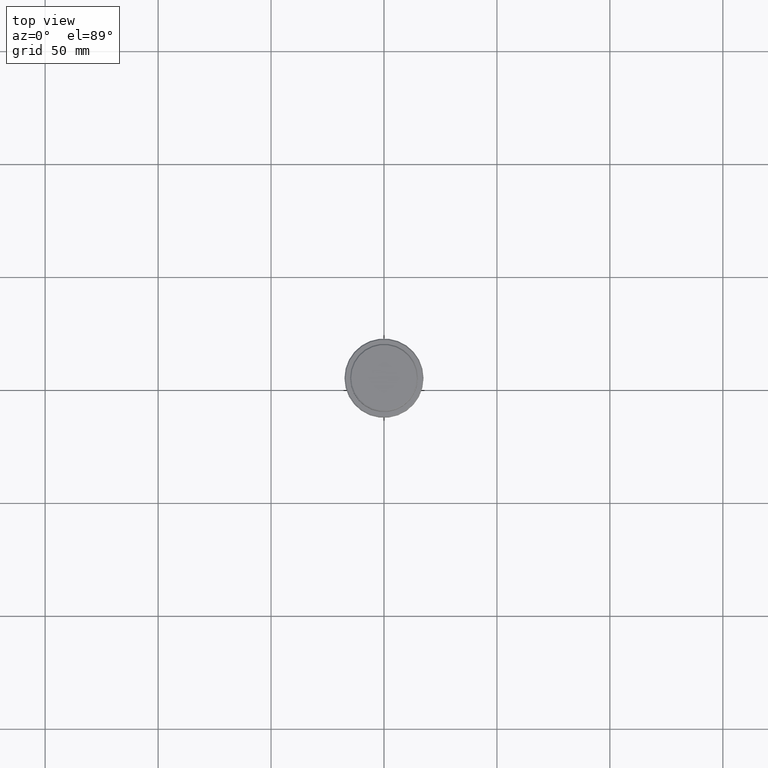
[diagram: clean part render]
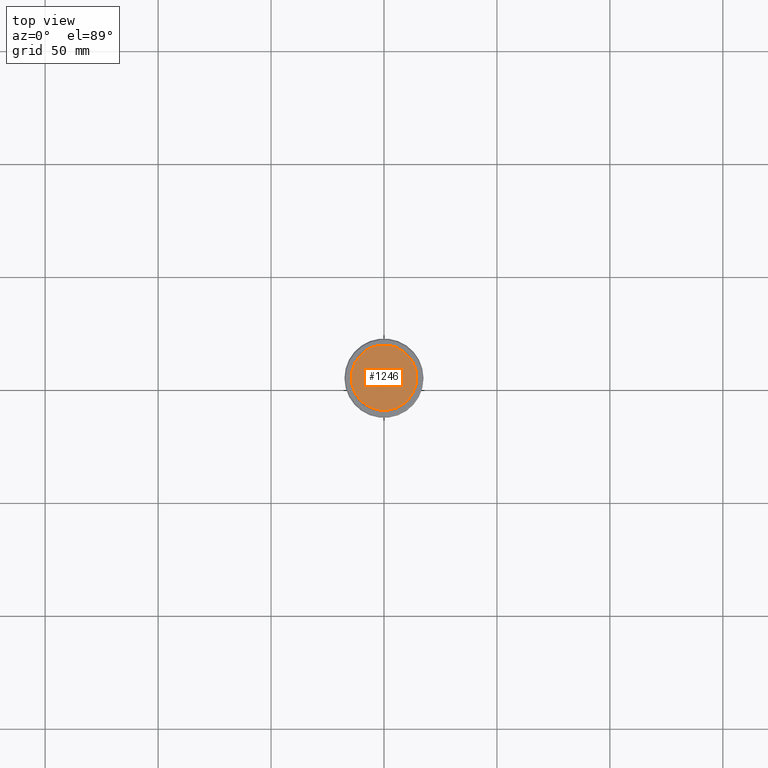
[diagram: same view with one face highlighted and labeled with its STEP entity id]
A machine part, top view. The second image highlights one B-rep face of the part: STEP entity #1246.
In plain terms, the highlighted planar face has unit normal (0, -0, 1).
Its self-contained STEP definition (entity closure, byte-faithful):
#149 = DIRECTION ( 'NONE',  ( -0.000000000000000000, -0.000000000000000000, 1.000000000000000000 ) ) ;
#195 = VERTEX_POINT ( 'NONE', #612 ) ;
#201 = AXIS2_PLACEMENT_3D ( 'NONE', #1286, #1373, #1401 ) ;
#267 = AXIS2_PLACEMENT_3D ( 'NONE', #922, #149, #1268 ) ;
#290 = DIRECTION ( 'NONE',  ( 0.000000000000000000, -0.000000000000000000, 1.000000000000000000 ) ) ;
#380 = ORIENTED_EDGE ( 'NONE', *, *, #710, .T. ) ;
#403 = CARTESIAN_POINT ( 'NONE',  ( -14.50000000000001066, 0.000000000000000000, 0.000000000000000000 ) ) ;
#612 = CARTESIAN_POINT ( 'NONE',  ( 14.50000000000001066, 1.806354028742346591E-15, 0.000000000000000000 ) ) ;
#620 = EDGE_LOOP ( 'NONE', ( #380, #1155 ) ) ;
#636 = DIRECTION ( 'NONE',  ( 1.000000000000000000, 0.000000000000000000, 0.000000000000000000 ) ) ;
#699 = CIRCLE ( 'NONE', #201, 14.50000000000001066 ) ;
#710 = EDGE_CURVE ( 'NONE', #801, #195, #699, .T. ) ;
#801 = VERTEX_POINT ( 'NONE', #403 ) ;
#836 = AXIS2_PLACEMENT_3D ( 'NONE', #1188, #290, #636 ) ;
#898 = CIRCLE ( 'NONE', #267, 14.50000000000001066 ) ;
#922 = CARTESIAN_POINT ( 'NONE',  ( 0.000000000000000000, 0.000000000000000000, 0.000000000000000000 ) ) ;
#972 = FACE_OUTER_BOUND ( 'NONE', #620, .T. ) ;
#1155 = ORIENTED_EDGE ( 'NONE', *, *, #1417, .T. ) ;
#1188 = CARTESIAN_POINT ( 'NONE',  ( 0.000000000000000000, 0.000000000000000000, 0.000000000000000000 ) ) ;
#1246 = ADVANCED_FACE ( 'NONE', ( #972 ), #1264, .T. ) ;
#1264 = PLANE ( 'NONE',  #836 ) ;
#1268 = DIRECTION ( 'NONE',  ( 1.000000000000000000, 0.000000000000000000, 0.000000000000000000 ) ) ;
#1286 = CARTESIAN_POINT ( 'NONE',  ( 0.000000000000000000, 0.000000000000000000, 0.000000000000000000 ) ) ;
#1373 = DIRECTION ( 'NONE',  ( -0.000000000000000000, -0.000000000000000000, 1.000000000000000000 ) ) ;
#1401 = DIRECTION ( 'NONE',  ( 1.000000000000000000, 0.000000000000000000, 0.000000000000000000 ) ) ;
#1417 = EDGE_CURVE ( 'NONE', #195, #801, #898, .T. ) ;